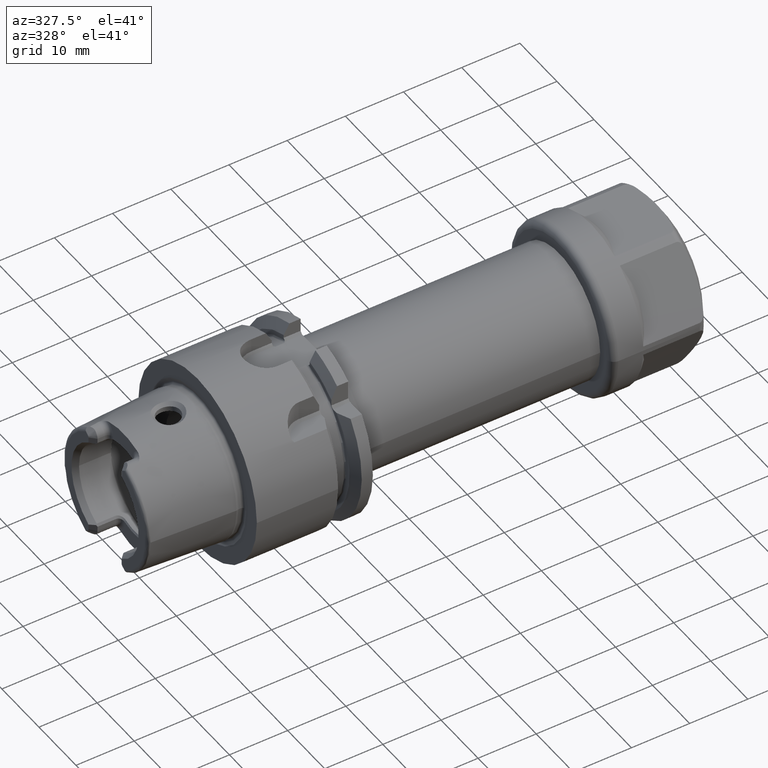
[diagram: clean part render]
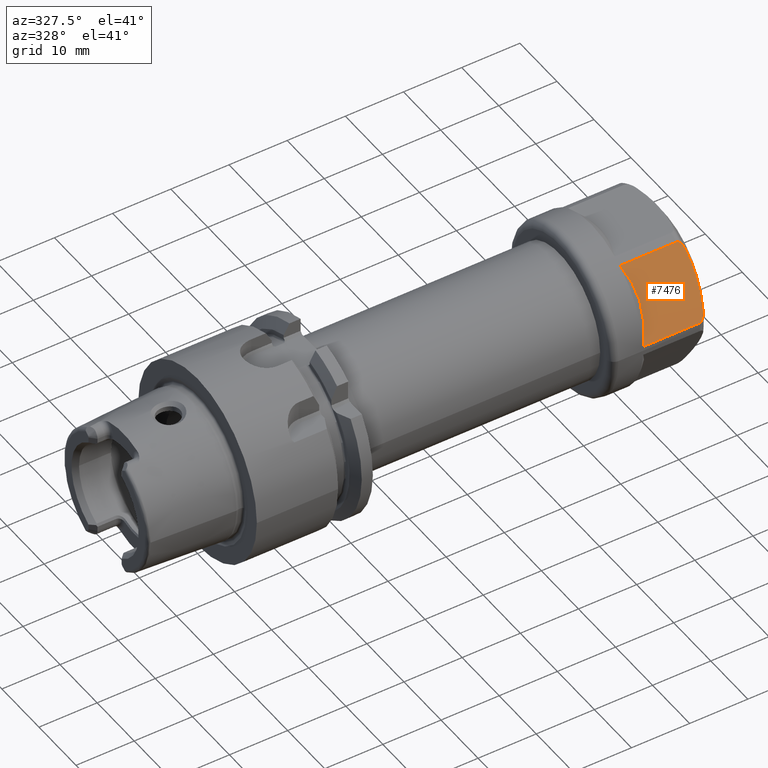
[diagram: same view with one face highlighted and labeled with its STEP entity id]
A machine part, auxiliary view. The second image highlights one B-rep face of the part: STEP entity #7476.
In plain terms, the highlighted planar face has unit normal (0, 0.866, -0.5).
Its self-contained STEP definition (entity closure, byte-faithful):
#6741=CARTESIAN_POINT('',(1.628445554338E1,-1.320442583614E1,2.129263567031E0));
#6742=CARTESIAN_POINT('',(1.625780514735E1,-1.326930180905E1,2.016895085765E0));
#6743=CARTESIAN_POINT('',(1.619635457926E1,-1.339611855140E1,1.797242044761E0));
#6744=CARTESIAN_POINT('',(1.606561669937E1,-1.358313235992E1,1.473324626685E0));
#6745=CARTESIAN_POINT('',(1.589737600801E1,-1.374600758383E1,1.191216463575E0));
#6746=CARTESIAN_POINT('',(1.569295978880E1,-1.387456556661E1,
9.685475056943E-1));
#6747=CARTESIAN_POINT('',(1.545738513995E1,-1.395784419192E1,
8.243046954560E-1));
#6748=CARTESIAN_POINT('',(1.528945671766E1,-1.397769760054E1,
7.899175830396E-1));
#6749=CARTESIAN_POINT('',(1.520192378865E1,-1.397769760054E1,
7.899175830396E-1));
#6751=CARTESIAN_POINT('',(1.520192378865E1,-7.672937494076E0,1.171008241696E1));
#6752=CARTESIAN_POINT('',(1.529096662636E1,-7.672937494076E0,1.171008241696E1));
#6753=CARTESIAN_POINT('',(1.546146335283E1,-7.693355425503E0,1.167471752234E1));
#6754=CARTESIAN_POINT('',(1.570142638899E1,-7.779918012653E0,1.152478672336E1));
#6755=CARTESIAN_POINT('',(1.590512360841E1,-7.910907250754E0,1.129790670773E1));
#6756=CARTESIAN_POINT('',(1.607010427330E1,-8.073198101160E0,1.101681070922E1));
#6757=CARTESIAN_POINT('',(1.619774346523E1,-8.257304148875E0,1.069792968060E1));
#6758=CARTESIAN_POINT('',(1.625821277607E1,-8.382325590146E0,1.048138619228E1));
#6759=CARTESIAN_POINT('',(1.628445554338E1,-8.446209258471E0,1.037073643297E1));
#6901=CARTESIAN_POINT('',(1.628445554338E1,-8.446209258471E0,1.037073643297E1));
#6902=CARTESIAN_POINT('',(1.644888995402E1,-8.846497582803E0,9.677416717550E0));
#6903=CARTESIAN_POINT('',(1.670318968294E1,-9.643182651782E0,8.297517700447E0));
#6904=CARTESIAN_POINT('',(1.683288207547E1,-1.082561227532E1,6.249489516108E0));
#6905=CARTESIAN_POINT('',(1.670310415631E1,-1.200772406709E1,4.202011832539E0));
#6906=CARTESIAN_POINT('',(1.644884551611E1,-1.280424568854E1,2.822395914862E0));
#6907=CARTESIAN_POINT('',(1.628445554338E1,-1.320442583614E1,2.129263567031E0));
#6950=CARTESIAN_POINT('',(5.501617668408E0,-1.397769760054E1,
7.899175830396E-1));
#6951=CARTESIAN_POINT('',(5.842086076927E0,-1.359953488221E1,1.444914624710E0));
#6952=CARTESIAN_POINT('',(6.405996362769E0,-1.286253981324E1,2.721427481748E0));
#6953=CARTESIAN_POINT('',(6.891809666009E0,-1.183413404708E1,4.502678732548E0));
#6954=CARTESIAN_POINT('',(7.055059837332E0,-1.082790609858E1,6.245515882315E0));
#6955=CARTESIAN_POINT('',(6.893391639045E0,-9.821015948899E0,7.989503690301E0));
#6956=CARTESIAN_POINT('',(6.407201587197E0,-8.789834090801E0,9.775552197029E0));
#6957=CARTESIAN_POINT('',(5.842427543074E0,-8.051699661006E0,1.105406556043E1));
#6958=CARTESIAN_POINT('',(5.501405986314E0,-7.672944079963E0,1.171008947045E1));
#6960=DIRECTION('',(9.999999999995E-1,6.789211628906E-7,-7.271250890031E-7));
#6961=VECTOR('',#6960,9.700517802338E0);
#6962=CARTESIAN_POINT('',(5.501405986314E0,-7.672944079963E0,1.171008947045E1));
#6963=LINE('',#6962,#6961);
#6964=DIRECTION('',(-1.E0,0.E0,0.E0));
#6965=VECTOR('',#6964,9.700306120238E0);
#6966=CARTESIAN_POINT('',(1.520192378865E1,-1.397769760054E1,
7.899175830396E-1));
#6967=LINE('',#6966,#6965);
#7127=VERTEX_POINT('',#6901);
#7128=VERTEX_POINT('',#6907);
#7139=VERTEX_POINT('',#6749);
#7140=VERTEX_POINT('',#6751);
#7151=CARTESIAN_POINT('',(5.501103096150E0,-1.397821137922E1,
7.899467055235E-1));
#7152=CARTESIAN_POINT('',(5.501103096150E0,-7.673107321420E0,1.171034152008E1));
#7153=VERTEX_POINT('',#7151);
#7154=VERTEX_POINT('',#7152);
#7460=CARTESIAN_POINT('',(1.78E1,-1.443375672974E1,0.E0));
#7461=DIRECTION('',(0.E0,8.660254037844E-1,-5.E-1));
#7462=DIRECTION('',(0.E0,5.E-1,8.660254037844E-1));
#7463=AXIS2_PLACEMENT_3D('',#7460,#7461,#7462);
#7464=PLANE('',#7463);
#7466=ORIENTED_EDGE('',*,*,#7465,.T.);
#7468=ORIENTED_EDGE('',*,*,#7467,.T.);
#7469=ORIENTED_EDGE('',*,*,#7338,.T.);
#7470=ORIENTED_EDGE('',*,*,#7444,.T.);
#7471=ORIENTED_EDGE('',*,*,#7328,.T.);
#7473=ORIENTED_EDGE('',*,*,#7472,.T.);
#7474=EDGE_LOOP('',(#7466,#7468,#7469,#7470,#7471,#7473));
#7475=FACE_OUTER_BOUND('',#7474,.F.);
#7476=ADVANCED_FACE('',(#7475),#7464,.F.);
#6750=B_SPLINE_CURVE_WITH_KNOTS('',3,(#6741,#6742,#6743,#6744,#6745,#6746,#6747,
#6748,#6749),.UNSPECIFIED.,.F.,.F.,(4,1,1,1,1,1,4),(0.E0,1.666666666667E-1,
3.333333333333E-1,5.E-1,6.666666666667E-1,8.333333333333E-1,1.E0),
.UNSPECIFIED.);
#6760=B_SPLINE_CURVE_WITH_KNOTS('',3,(#6751,#6752,#6753,#6754,#6755,#6756,#6757,
#6758,#6759),.UNSPECIFIED.,.F.,.F.,(4,1,1,1,1,1,4),(0.E0,1.666666666667E-1,
3.333333333333E-1,5.E-1,6.666666666667E-1,8.333333333333E-1,1.E0),
.UNSPECIFIED.);
#6908=B_SPLINE_CURVE_WITH_KNOTS('',3,(#6901,#6902,#6903,#6904,#6905,#6906,
#6907),.UNSPECIFIED.,.F.,.F.,(4,1,1,1,4),(0.E0,2.5E-1,5.E-1,7.5E-1,1.E0),
.UNSPECIFIED.);
#6959=B_SPLINE_CURVE_WITH_KNOTS('',3,(#6950,#6951,#6952,#6953,#6954,#6955,#6956,
#6957,#6958),.UNSPECIFIED.,.F.,.F.,(4,1,1,1,1,1,4),(0.E0,1.666666666667E-1,
3.333333333333E-1,5.E-1,6.666666666667E-1,8.333333333333E-1,1.E0),
.UNSPECIFIED.);
#7328=EDGE_CURVE('',#7128,#7139,#6750,.T.);
#7338=EDGE_CURVE('',#7140,#7127,#6760,.T.);
#7444=EDGE_CURVE('',#7127,#7128,#6908,.T.);
#7465=EDGE_CURVE('',#7153,#7154,#6959,.T.);
#7467=EDGE_CURVE('',#7154,#7140,#6963,.T.);
#7472=EDGE_CURVE('',#7139,#7153,#6967,.T.);